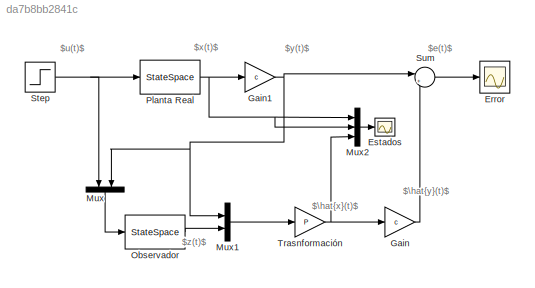
MODEL slx_da7b8bb2841c
KIND model
CONFIG AbsTol = auto
CONFIG EnableMultiTasking = off
CONFIG FixedStep = auto
CONFIG MaxStep = auto
CONFIG MinStep = auto
CONFIG RelTol = 1e-3
CONFIG SampleTimeConstraint = Unconstrained
CONFIG SolverName = VariableStepAuto
CONFIG StartTime = 0.0
CONFIG StopTime = 10
BLOCK [Scope] Error
  Floating = off
  NumInputPorts = 1
  Ports = [1]
  ScopeSpecificationString = Simulink.scopes.TimeScopeBlockCfg('CurrentConfiguration', extmgr.ConfigurationSet(extmgr.Configuration('Core','General UI',true),extmgr.Configuration('Core','Source UI',true),extmgr.Configuration('Sources','WiredSimulink',true),extmgr.Configuration('Visuals','Time Domain',true,'SerializedDisplays',{struct('MinYLimReal','-1.00000','MaxYLimReal','1.00000','YLabelReal','','MinYLimMag','0.00000','MaxY...<+1400ch>
BLOCK [Scope] Estados
  Floating = off
  NumInputPorts = 1
  Ports = [1]
  ScopeSpecificationString = Simulink.scopes.TimeScopeBlockCfg('CurrentConfiguration', extmgr.ConfigurationSet(extmgr.Configuration('Core','General UI',true),extmgr.Configuration('Core','Source UI',true),extmgr.Configuration('Sources','WiredSimulink',true,'DataLoggingVariableName','ScopeData1'),extmgr.Configuration('Visuals','Time Domain',true,'SerializedDisplays',{struct('MinYLimReal','-3.25','MaxYLimReal','9.25','YLabelReal...<+1899ch>
BLOCK [Gain] Gain
  Gain = c
  Multiplication = Matrix(K*u)
BLOCK [Gain] Gain1
  Gain = c
  Multiplication = Matrix(K*u)
BLOCK [Mux] Mux
  DisplayOption = bar
  Inputs = 2
  NameLocation = left
  Ports = [2, 1]
BLOCK [Mux] Mux1
  DisplayOption = bar
  Inputs = 2
  Ports = [2, 1]
BLOCK [Mux] Mux2
  DisplayOption = bar
  Inputs = 3
  Ports = [3, 1]
BLOCK [StateSpace] Observador
  A = F
  B = [T*b,l]
  D = [0 0]
  InitialCondition = 0
  Ports = [1, 1]
BLOCK [StateSpace] Planta Real
  A = A
  B = b
  C = eye(2)
  D = [0 0]'
  InitialCondition = [-2 1]
  Ports = [1, 1]
BLOCK [Step] Step
  SampleTime = 0
  Time = 0
BLOCK [Sum] Sum
  Inputs = |+-
  Ports = [2, 1]
BLOCK [Gain] Trasnformación
  Gain = P
  Multiplication = Matrix(K*u)
ANNOTATION (root): $\hat{x}(t)$
ANNOTATION (root): $z(t)$
ANNOTATION (root): $\hat{y}(t)$
ANNOTATION (root): $e(t)$
ANNOTATION (root): $u(t)$
ANNOTATION (root): $x(t)$
ANNOTATION (root): $y(t)$
NET Gain1:1 -> Mux1:1, Mux:2, Sum:1
LINE Gain:1 -> Sum:2
LINE Mux1:1 -> Trasnformación:1
LINE Mux2:1 -> Estados:1
LINE Mux:1 -> Observador:1
LINE Observador:1 -> Mux1:2
NET Planta Real:1 -> Gain1:1, Mux2:1, Mux2:2
NET Step:1 -> Mux:1, Planta Real:1
LINE Sum:1 -> Error:1
NET Trasnformación:1 -> Gain:1, Mux2:3
note: NET lines group one-source signal fan-out (src -> all destinations, sorted); 1:1 wires keep LINE
